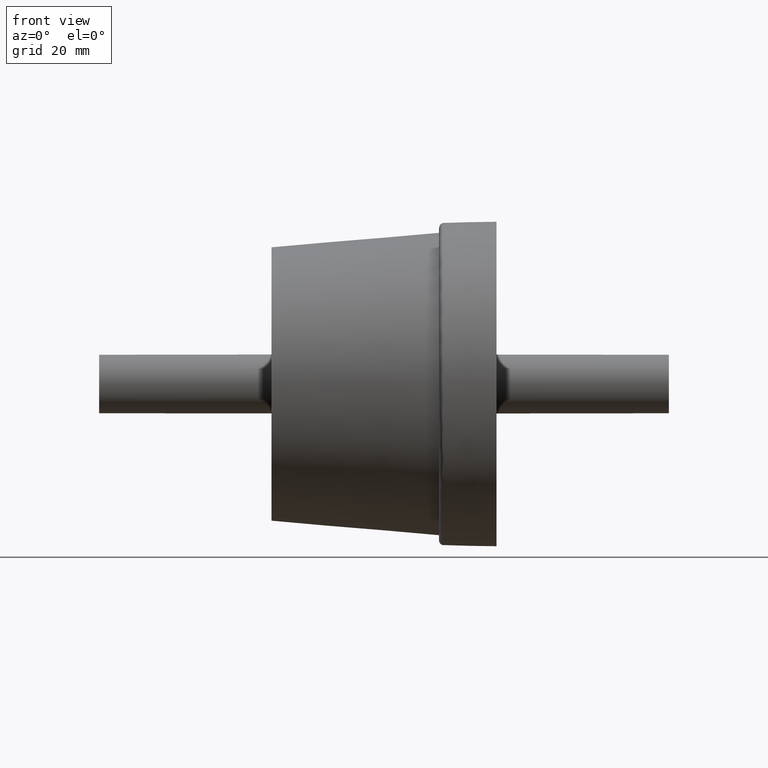
[diagram: clean part render]
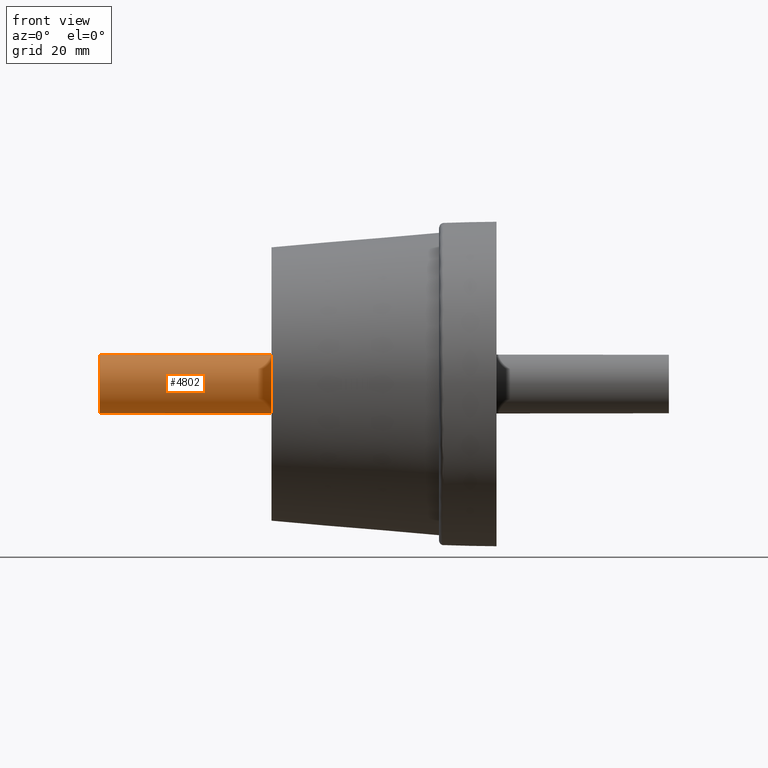
[diagram: same view with one face highlighted and labeled with its STEP entity id]
A machine part, front view. The second image highlights one B-rep face of the part: STEP entity #4802.
In plain terms, the highlighted cylindrical surface (bore or boss wall) has radius 5.9 mm, axis along (1, 0, 0).
Its self-contained STEP definition (entity closure, byte-faithful):
#126=CYLINDRICAL_SURFACE('',#5317,5.9);
#1227=FACE_BOUND('',#1860,.T.);
#1510=FACE_OUTER_BOUND('',#1859,.T.);
#1859=EDGE_LOOP('',(#4516));
#1860=EDGE_LOOP('',(#4517));
#2082=CIRCLE('',#5296,5.9);
#2090=CIRCLE('',#5316,5.9);
#2533=VERTEX_POINT('',#8144);
#2535=VERTEX_POINT('',#8166);
#3188=EDGE_CURVE('',#2533,#2533,#2082,.T.);
#3196=EDGE_CURVE('',#2535,#2535,#2090,.T.);
#4516=ORIENTED_EDGE('',*,*,#3188,.T.);
#4517=ORIENTED_EDGE('',*,*,#3196,.T.);
#4802=ADVANCED_FACE('',(#1510,#1227),#126,.T.);
#5296=AXIS2_PLACEMENT_3D('',#8145,#6733,#6734);
#5316=AXIS2_PLACEMENT_3D('',#8167,#6773,#6774);
#5317=AXIS2_PLACEMENT_3D('',#8168,#6775,#6776);
#6733=DIRECTION('center_axis',(-1.,-1.83697019872103E-16,0.));
#6734=DIRECTION('ref_axis',(0.,0.,-1.));
#6773=DIRECTION('center_axis',(1.,1.83697019872103E-16,0.));
#6774=DIRECTION('ref_axis',(0.,0.,-1.));
#6775=DIRECTION('center_axis',(1.,1.83697019872103E-16,0.));
#6776=DIRECTION('ref_axis',(0.,1.,0.));
#8144=CARTESIAN_POINT('',(-21.5,7.2437858169566E-15,5.9));
#8145=CARTESIAN_POINT('Origin',(-21.5,6.52124420545966E-15,0.));
#8166=CARTESIAN_POINT('',(-57.,5.9,0.));
#8167=CARTESIAN_POINT('Origin',(-57.,0.,0.));
#8168=CARTESIAN_POINT('Origin',(0.,1.04707301327099E-14,0.));